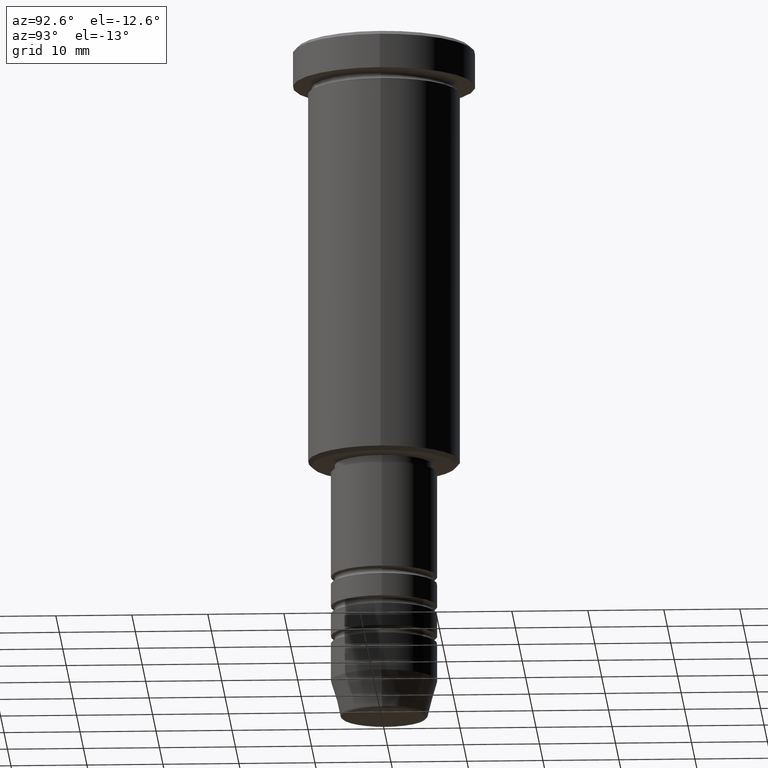
[diagram: clean part render]
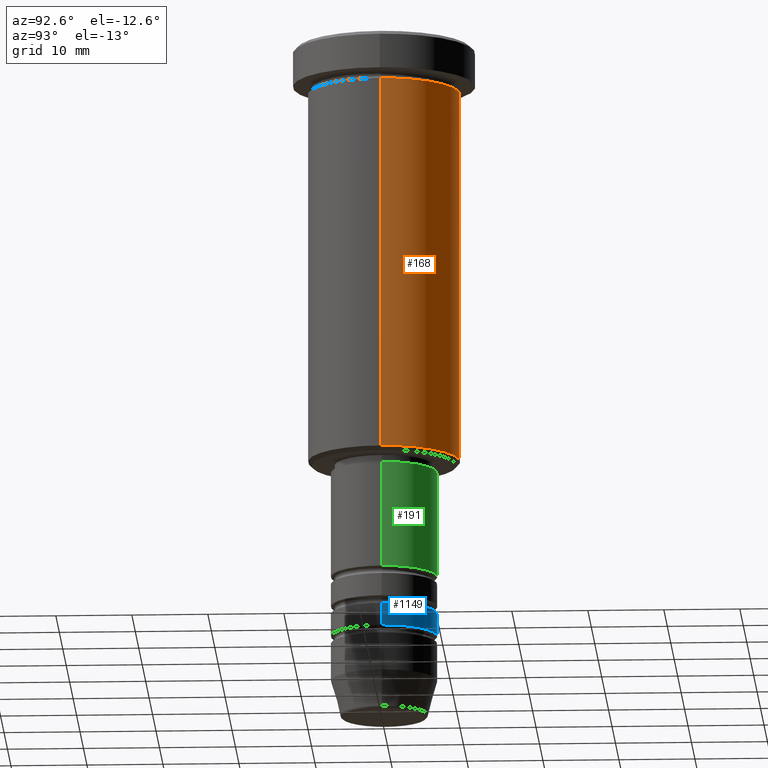
[diagram: same view with three faces highlighted in distinct colors, each labeled with its STEP entity id]
A machine part, auxiliary view with three faces highlighted in distinct colors.
Their STEP definitions:

[orange] entity #168 — the highlighted cylindrical surface (partial cylindrical patch) has radius 10 mm, axis along (-0, -0, 1).
#27 = DIRECTION ( 'NONE',  ( 1.000000000000000000, 0.000000000000000000, 0.000000000000000000 ) ) ;
#38 = EDGE_CURVE ( 'NONE', #144, #592, #751, .T. ) ;
#46 = DIRECTION ( 'NONE',  ( -0.000000000000000000, -0.000000000000000000, 1.000000000000000000 ) ) ;
#77 = ORIENTED_EDGE ( 'NONE', *, *, #167, .F. ) ;
#81 = ORIENTED_EDGE ( 'NONE', *, *, #1032, .T. ) ;
#84 = CIRCLE ( 'NONE', #130, 10.00000000000000000 ) ;
#91 = EDGE_CURVE ( 'NONE', #900, #713, #196, .T. ) ;
#96 = CARTESIAN_POINT ( 'NONE',  ( 9.999999999999998224, 0.000000000000000000, 0.000000000000000000 ) ) ;
#130 = AXIS2_PLACEMENT_3D ( 'NONE', #1133, #237, #27 ) ;
#137 = CARTESIAN_POINT ( 'NONE',  ( -10.00000000000000000, 1.224646799147353256E-15, -6.000000000000000000 ) ) ;
#143 = CARTESIAN_POINT ( 'NONE',  ( -9.999999999999998224, 1.224646799147353059E-15, -55.49999999999997158 ) ) ;
#144 = VERTEX_POINT ( 'NONE', #143 ) ;
#167 = EDGE_CURVE ( 'NONE', #713, #592, #84, .T. ) ;
#168 = ADVANCED_FACE ( 'NONE', ( #764 ), #224, .T. ) ;
#196 = LINE ( 'NONE', #96, #569 ) ;
#224 = CYLINDRICAL_SURFACE ( 'NONE', #795, 9.999999999999998224 ) ;
#237 = DIRECTION ( 'NONE',  ( -0.000000000000000000, -0.000000000000000000, 1.000000000000000000 ) ) ;
#384 = AXIS2_PLACEMENT_3D ( 'NONE', #585, #680, #493 ) ;
#450 = EDGE_LOOP ( 'NONE', ( #81, #1020, #77, #622 ) ) ;
#466 = DIRECTION ( 'NONE',  ( -0.000000000000000000, -0.000000000000000000, 1.000000000000000000 ) ) ;
#481 = CARTESIAN_POINT ( 'NONE',  ( -9.999999999999998224, 1.224646799147353059E-15, 0.000000000000000000 ) ) ;
#491 = DIRECTION ( 'NONE',  ( -0.000000000000000000, -0.000000000000000000, 1.000000000000000000 ) ) ;
#493 = DIRECTION ( 'NONE',  ( -1.000000000000000000, 0.000000000000000000, 0.000000000000000000 ) ) ;
#569 = VECTOR ( 'NONE', #466, 1000.000000000000000 ) ;
#585 = CARTESIAN_POINT ( 'NONE',  ( 0.000000000000000000, 0.000000000000000000, -55.49999999999997158 ) ) ;
#592 = VERTEX_POINT ( 'NONE', #137 ) ;
#595 = CARTESIAN_POINT ( 'NONE',  ( 10.00000000000000000, 0.000000000000000000, -6.000000000000000000 ) ) ;
#622 = ORIENTED_EDGE ( 'NONE', *, *, #91, .F. ) ;
#680 = DIRECTION ( 'NONE',  ( -0.000000000000000000, -0.000000000000000000, 1.000000000000000000 ) ) ;
#694 = CARTESIAN_POINT ( 'NONE',  ( 0.000000000000000000, 0.000000000000000000, 0.000000000000000000 ) ) ;
#713 = VERTEX_POINT ( 'NONE', #595 ) ;
#751 = LINE ( 'NONE', #481, #1043 ) ;
#763 = CIRCLE ( 'NONE', #384, 9.999999999999998224 ) ;
#764 = FACE_OUTER_BOUND ( 'NONE', #450, .T. ) ;
#795 = AXIS2_PLACEMENT_3D ( 'NONE', #694, #46, #872 ) ;
#844 = CARTESIAN_POINT ( 'NONE',  ( 9.999999999999998224, 0.000000000000000000, -55.49999999999997158 ) ) ;
#872 = DIRECTION ( 'NONE',  ( 1.000000000000000000, 0.000000000000000000, 0.000000000000000000 ) ) ;
#900 = VERTEX_POINT ( 'NONE', #844 ) ;
#1020 = ORIENTED_EDGE ( 'NONE', *, *, #38, .T. ) ;
#1032 = EDGE_CURVE ( 'NONE', #900, #144, #763, .T. ) ;
#1043 = VECTOR ( 'NONE', #491, 1000.000000000000000 ) ;
#1133 = CARTESIAN_POINT ( 'NONE',  ( 0.000000000000000000, 0.000000000000000000, -6.000000000000000000 ) ) ;

[blue] entity #1149 — the highlighted cylindrical surface (partial cylindrical patch) has radius 7 mm, axis along (-0, -0, 1).
#2 = LINE ( 'NONE', #736, #337 ) ;
#20 = ORIENTED_EDGE ( 'NONE', *, *, #490, .T. ) ;
#51 = DIRECTION ( 'NONE',  ( 1.000000000000000000, 0.000000000000000000, 0.000000000000000000 ) ) ;
#86 = CIRCLE ( 'NONE', #1062, 7.000000000000000888 ) ;
#97 = EDGE_CURVE ( 'NONE', #102, #602, #2, .T. ) ;
#102 = VERTEX_POINT ( 'NONE', #1011 ) ;
#106 = CARTESIAN_POINT ( 'NONE',  ( 7.000000000000000888, 0.000000000000000000, 0.000000000000000000 ) ) ;
#226 = CYLINDRICAL_SURFACE ( 'NONE', #703, 7.000000000000000888 ) ;
#324 = ORIENTED_EDGE ( 'NONE', *, *, #97, .T. ) ;
#331 = VERTEX_POINT ( 'NONE', #796 ) ;
#337 = VECTOR ( 'NONE', #1099, 1000.000000000000000 ) ;
#350 = DIRECTION ( 'NONE',  ( -0.000000000000000000, -0.000000000000000000, 1.000000000000000000 ) ) ;
#382 = DIRECTION ( 'NONE',  ( -0.000000000000000000, -0.000000000000000000, 1.000000000000000000 ) ) ;
#392 = DIRECTION ( 'NONE',  ( 1.000000000000000000, 0.000000000000000000, 0.000000000000000000 ) ) ;
#490 = EDGE_CURVE ( 'NONE', #518, #102, #86, .T. ) ;
#498 = AXIS2_PLACEMENT_3D ( 'NONE', #541, #350, #51 ) ;
#500 = CARTESIAN_POINT ( 'NONE',  ( 0.000000000000000000, 0.000000000000000000, 0.000000000000000000 ) ) ;
#518 = VERTEX_POINT ( 'NONE', #832 ) ;
#541 = CARTESIAN_POINT ( 'NONE',  ( 0.000000000000000000, 0.000000000000000000, -75.99999999999998579 ) ) ;
#550 = DIRECTION ( 'NONE',  ( 1.000000000000000000, 0.000000000000000000, 0.000000000000000000 ) ) ;
#573 = VECTOR ( 'NONE', #921, 1000.000000000000000 ) ;
#602 = VERTEX_POINT ( 'NONE', #778 ) ;
#675 = FACE_OUTER_BOUND ( 'NONE', #961, .T. ) ;
#703 = AXIS2_PLACEMENT_3D ( 'NONE', #500, #874, #392 ) ;
#729 = LINE ( 'NONE', #106, #573 ) ;
#733 = ORIENTED_EDGE ( 'NONE', *, *, #1162, .F. ) ;
#736 = CARTESIAN_POINT ( 'NONE',  ( -7.000000000000000888, 8.572527594031474176E-16, 0.000000000000000000 ) ) ;
#778 = CARTESIAN_POINT ( 'NONE',  ( -7.000000000000000000, 8.572527594031473190E-16, -75.99999999999998579 ) ) ;
#796 = CARTESIAN_POINT ( 'NONE',  ( 7.000000000000000000, 0.000000000000000000, -75.99999999999998579 ) ) ;
#832 = CARTESIAN_POINT ( 'NONE',  ( 7.000000000000000888, 0.000000000000000000, -78.99999999999997158 ) ) ;
#859 = CIRCLE ( 'NONE', #498, 7.000000000000000000 ) ;
#874 = DIRECTION ( 'NONE',  ( -0.000000000000000000, -0.000000000000000000, 1.000000000000000000 ) ) ;
#890 = EDGE_CURVE ( 'NONE', #518, #331, #729, .T. ) ;
#921 = DIRECTION ( 'NONE',  ( -0.000000000000000000, -0.000000000000000000, 1.000000000000000000 ) ) ;
#927 = ORIENTED_EDGE ( 'NONE', *, *, #890, .F. ) ;
#961 = EDGE_LOOP ( 'NONE', ( #20, #324, #733, #927 ) ) ;
#1011 = CARTESIAN_POINT ( 'NONE',  ( -7.000000000000000888, 8.572527594031474176E-16, -78.99999999999997158 ) ) ;
#1029 = CARTESIAN_POINT ( 'NONE',  ( 0.000000000000000000, 0.000000000000000000, -78.99999999999997158 ) ) ;
#1062 = AXIS2_PLACEMENT_3D ( 'NONE', #1029, #382, #550 ) ;
#1099 = DIRECTION ( 'NONE',  ( -0.000000000000000000, -0.000000000000000000, 1.000000000000000000 ) ) ;
#1149 = ADVANCED_FACE ( 'NONE', ( #675 ), #226, .T. ) ;
#1162 = EDGE_CURVE ( 'NONE', #331, #602, #859, .T. ) ;

[green] entity #191 — the highlighted cylindrical surface (partial cylindrical patch) has radius 7 mm, axis along (-0, -0, 1).
#116 = EDGE_CURVE ( 'NONE', #1124, #189, #973, .T. ) ;
#179 = ORIENTED_EDGE ( 'NONE', *, *, #116, .T. ) ;
#185 = LINE ( 'NONE', #812, #300 ) ;
#189 = VERTEX_POINT ( 'NONE', #425 ) ;
#191 = ADVANCED_FACE ( 'NONE', ( #968 ), #583, .T. ) ;
#210 = DIRECTION ( 'NONE',  ( -0.000000000000000000, -0.000000000000000000, 1.000000000000000000 ) ) ;
#219 = EDGE_LOOP ( 'NONE', ( #930, #179, #349, #1136 ) ) ;
#248 = AXIS2_PLACEMENT_3D ( 'NONE', #948, #678, #1055 ) ;
#288 = DIRECTION ( 'NONE',  ( 1.000000000000000000, 0.000000000000000000, 0.000000000000000000 ) ) ;
#300 = VECTOR ( 'NONE', #345, 1000.000000000000000 ) ;
#316 = VERTEX_POINT ( 'NONE', #362 ) ;
#345 = DIRECTION ( 'NONE',  ( -0.000000000000000000, -0.000000000000000000, 1.000000000000000000 ) ) ;
#349 = ORIENTED_EDGE ( 'NONE', *, *, #727, .F. ) ;
#362 = CARTESIAN_POINT ( 'NONE',  ( 7.000000000000000888, 0.000000000000000000, -57.00000000000000711 ) ) ;
#364 = EDGE_CURVE ( 'NONE', #655, #316, #185, .T. ) ;
#425 = CARTESIAN_POINT ( 'NONE',  ( -7.000000000000000888, 8.572527594031474176E-16, -57.00000000000000711 ) ) ;
#521 = CARTESIAN_POINT ( 'NONE',  ( 0.000000000000000000, 0.000000000000000000, -57.00000000000000711 ) ) ;
#583 = CYLINDRICAL_SURFACE ( 'NONE', #248, 7.000000000000000888 ) ;
#624 = AXIS2_PLACEMENT_3D ( 'NONE', #521, #794, #1152 ) ;
#655 = VERTEX_POINT ( 'NONE', #1140 ) ;
#660 = VECTOR ( 'NONE', #867, 1000.000000000000000 ) ;
#678 = DIRECTION ( 'NONE',  ( -0.000000000000000000, -0.000000000000000000, 1.000000000000000000 ) ) ;
#720 = CIRCLE ( 'NONE', #624, 7.000000000000000888 ) ;
#727 = EDGE_CURVE ( 'NONE', #316, #189, #720, .T. ) ;
#769 = CARTESIAN_POINT ( 'NONE',  ( -7.000000000000000888, 8.572527594031474176E-16, 0.000000000000000000 ) ) ;
#794 = DIRECTION ( 'NONE',  ( -0.000000000000000000, -0.000000000000000000, 1.000000000000000000 ) ) ;
#812 = CARTESIAN_POINT ( 'NONE',  ( 7.000000000000000888, 0.000000000000000000, 0.000000000000000000 ) ) ;
#818 = CIRCLE ( 'NONE', #974, 7.000000000000000888 ) ;
#867 = DIRECTION ( 'NONE',  ( -0.000000000000000000, -0.000000000000000000, 1.000000000000000000 ) ) ;
#926 = EDGE_CURVE ( 'NONE', #655, #1124, #818, .T. ) ;
#930 = ORIENTED_EDGE ( 'NONE', *, *, #926, .T. ) ;
#948 = CARTESIAN_POINT ( 'NONE',  ( 0.000000000000000000, 0.000000000000000000, 0.000000000000000000 ) ) ;
#962 = CARTESIAN_POINT ( 'NONE',  ( -7.000000000000000888, 8.572527594031474176E-16, -70.99999999999998579 ) ) ;
#968 = FACE_OUTER_BOUND ( 'NONE', #219, .T. ) ;
#973 = LINE ( 'NONE', #769, #660 ) ;
#974 = AXIS2_PLACEMENT_3D ( 'NONE', #1008, #210, #288 ) ;
#1008 = CARTESIAN_POINT ( 'NONE',  ( 0.000000000000000000, 0.000000000000000000, -70.99999999999998579 ) ) ;
#1055 = DIRECTION ( 'NONE',  ( 1.000000000000000000, 0.000000000000000000, 0.000000000000000000 ) ) ;
#1124 = VERTEX_POINT ( 'NONE', #962 ) ;
#1136 = ORIENTED_EDGE ( 'NONE', *, *, #364, .F. ) ;
#1140 = CARTESIAN_POINT ( 'NONE',  ( 7.000000000000000888, 0.000000000000000000, -70.99999999999998579 ) ) ;
#1152 = DIRECTION ( 'NONE',  ( 1.000000000000000000, 0.000000000000000000, 0.000000000000000000 ) ) ;